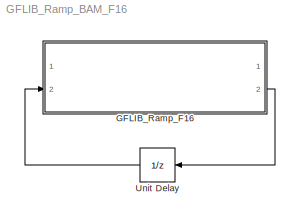
MODEL GFLIB_Ramp_BAM_F16
KIND model
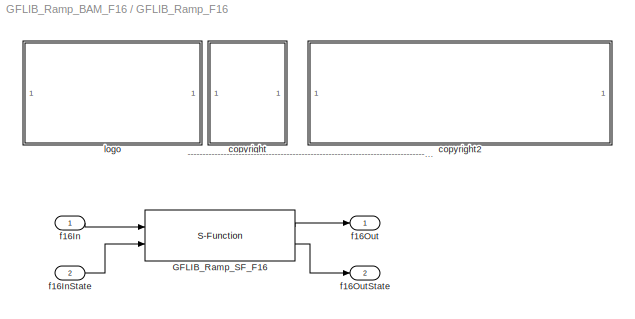
BLOCK [SubSystem] GFLIB_Ramp_F16
  Ports = [2, 2]
  RequestExecContextInheritance = off
  SID = 1
BLOCK [S-Function] GFLIB_Ramp_F16/GFLIB_Ramp_SF_F16
  EnableBusSupport = off
  FunctionName = GFLIB_Ramp_SF_F16
  Parameters = f16RampUp,f16RampDown
  Ports = [2, 2]
  SID = 4
BLOCK [SubSystem] GFLIB_Ramp_F16/<copyright redacted>
  Ports = []
  RequestExecContextInheritance = off
  SID = 5
BLOCK [SubSystem] GFLIB_Ramp_F16/copyright2
  Ports = []
  RequestExecContextInheritance = off
  SID = 6
BLOCK [Inport] GFLIB_Ramp_F16/f16In
  IconDisplay = Port number
  SID = 2
BLOCK [Inport] GFLIB_Ramp_F16/f16InState
  IconDisplay = Port number
  Port = 2
  SID = 3
BLOCK [Outport] GFLIB_Ramp_F16/f16Out
  IconDisplay = Port number
  SID = 8
BLOCK [Outport] GFLIB_Ramp_F16/f16OutState
  IconDisplay = Port number
  Port = 2
  SID = 9
BLOCK [SubSystem] GFLIB_Ramp_F16/logo
  Ports = []
  RequestExecContextInheritance = off
  SID = 7
BLOCK [UnitDelay] Unit Delay
  SID = 11
  SampleTime = -1
ANNOTATION GFLIB_Ramp_F16: ---------------------------------------------------------------------------------------------------------------------------------------------------------------------------------------------------
LINE GFLIB_Ramp_F16/GFLIB_Ramp_SF_F16:1 -> GFLIB_Ramp_F16/f16Out:1
LINE GFLIB_Ramp_F16/GFLIB_Ramp_SF_F16:2 -> GFLIB_Ramp_F16/f16OutState:1
LINE GFLIB_Ramp_F16/f16In:1 -> GFLIB_Ramp_F16/GFLIB_Ramp_SF_F16:1
LINE GFLIB_Ramp_F16/f16InState:1 -> GFLIB_Ramp_F16/GFLIB_Ramp_SF_F16:2
LINE GFLIB_Ramp_F16:2 -> Unit Delay:1
LINE Unit Delay:1 -> GFLIB_Ramp_F16:2
